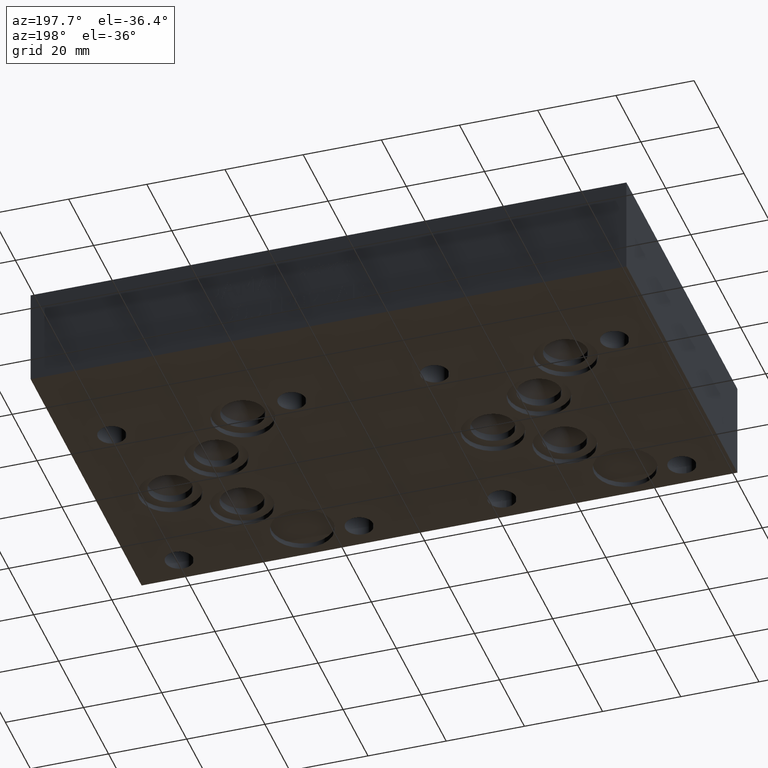
[diagram: clean part render]
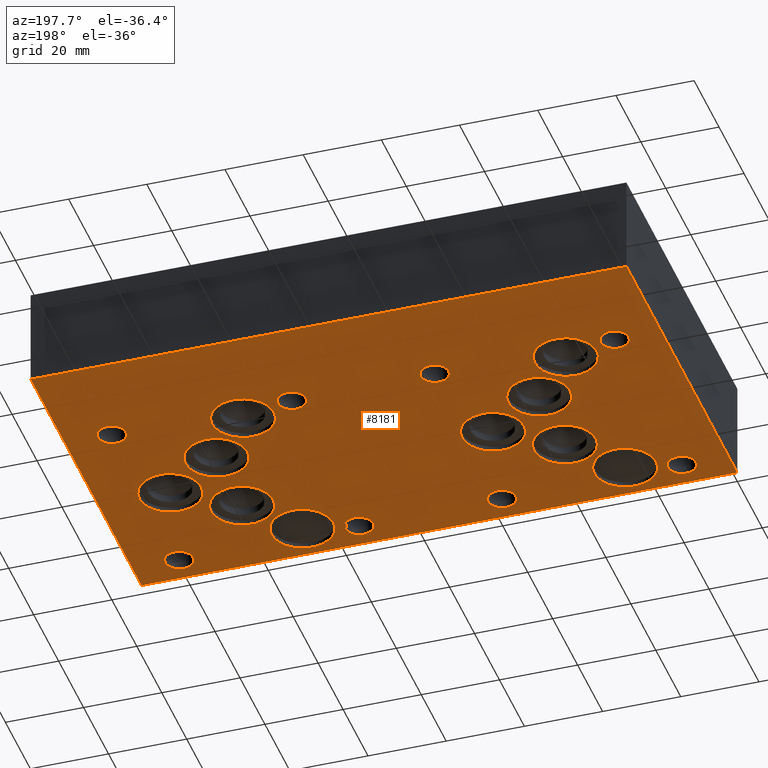
[diagram: same view with one face highlighted and labeled with its STEP entity id]
A machine part, auxiliary view. The second image highlights one B-rep face of the part: STEP entity #8181.
In plain terms, the highlighted planar face has unit normal (0, 0, 1).
Its self-contained STEP definition (entity closure, byte-faithful):
#74=CIRCLE('',#8498,7.9375);
#76=CIRCLE('',#8502,7.9375);
#78=CIRCLE('',#8506,7.9375);
#80=CIRCLE('',#8510,7.9375);
#82=CIRCLE('',#8514,7.9375);
#84=CIRCLE('',#8518,7.9375);
#86=CIRCLE('',#8522,7.9375);
#88=CIRCLE('',#8526,7.9375);
#90=CIRCLE('',#8530,7.9375);
#92=CIRCLE('',#8534,7.9375);
#95=CIRCLE('',#8540,3.5687);
#98=CIRCLE('',#8545,3.5687);
#101=CIRCLE('',#8550,3.5687);
#103=CIRCLE('',#8554,3.5687);
#105=CIRCLE('',#8558,3.5687);
#107=CIRCLE('',#8562,3.5687);
#109=CIRCLE('',#8566,3.5687);
#111=CIRCLE('',#8570,3.5687);
#114=CIRCLE('',#8574,3.5687);
#116=CIRCLE('',#8577,3.5687);
#117=CIRCLE('',#8579,3.5687);
#118=CIRCLE('',#8580,3.5687);
#119=CIRCLE('',#8581,3.5687);
#120=CIRCLE('',#8582,3.5687);
#121=CIRCLE('',#8583,3.5687);
#122=CIRCLE('',#8584,3.5687);
#123=CIRCLE('',#8585,3.5687);
#124=CIRCLE('',#8586,3.5687);
#125=CIRCLE('',#8587,3.5687);
#126=CIRCLE('',#8588,3.5687);
#127=CIRCLE('',#8589,3.5687);
#218=FACE_BOUND('',#1364,.T.);
#219=FACE_BOUND('',#1365,.T.);
#220=FACE_BOUND('',#1366,.T.);
#221=FACE_BOUND('',#1367,.T.);
#222=FACE_BOUND('',#1368,.T.);
#223=FACE_BOUND('',#1369,.T.);
#224=FACE_BOUND('',#1370,.T.);
#225=FACE_BOUND('',#1371,.T.);
#226=FACE_BOUND('',#1372,.T.);
#227=FACE_BOUND('',#1373,.T.);
#228=FACE_BOUND('',#1374,.T.);
#229=FACE_BOUND('',#1375,.T.);
#230=FACE_BOUND('',#1376,.T.);
#231=FACE_BOUND('',#1377,.T.);
#232=FACE_BOUND('',#1378,.T.);
#233=FACE_BOUND('',#1379,.T.);
#234=FACE_BOUND('',#1380,.T.);
#235=FACE_BOUND('',#1381,.T.);
#499=PLANE('',#8578);
#899=FACE_OUTER_BOUND('',#1363,.T.);
#1363=EDGE_LOOP('',(#7161,#7162,#7163,#7164));
#1364=EDGE_LOOP('',(#7165));
#1365=EDGE_LOOP('',(#7166));
#1366=EDGE_LOOP('',(#7167));
#1367=EDGE_LOOP('',(#7168));
#1368=EDGE_LOOP('',(#7169));
#1369=EDGE_LOOP('',(#7170));
#1370=EDGE_LOOP('',(#7171));
#1371=EDGE_LOOP('',(#7172));
#1372=EDGE_LOOP('',(#7173));
#1373=EDGE_LOOP('',(#7174));
#1374=EDGE_LOOP('',(#7175,#7176,#7177));
#1375=EDGE_LOOP('',(#7178,#7179,#7180));
#1376=EDGE_LOOP('',(#7181,#7182,#7183));
#1377=EDGE_LOOP('',(#7184,#7185,#7186));
#1378=EDGE_LOOP('',(#7187,#7188,#7189));
#1379=EDGE_LOOP('',(#7190,#7191));
#1380=EDGE_LOOP('',(#7192,#7193));
#1381=EDGE_LOOP('',(#7194,#7195));
#1774=LINE('',#12635,#2576);
#2199=LINE('',#13965,#3001);
#2200=LINE('',#13966,#3002);
#2201=LINE('',#13967,#3003);
#2576=VECTOR('',#9180,10.);
#3001=VECTOR('',#10115,10.);
#3002=VECTOR('',#10116,10.);
#3003=VECTOR('',#10117,10.);
#3611=VERTEX_POINT('',#12633);
#3612=VERTEX_POINT('',#12634);
#3901=VERTEX_POINT('',#13622);
#3903=VERTEX_POINT('',#13629);
#3905=VERTEX_POINT('',#13636);
#3907=VERTEX_POINT('',#13643);
#3909=VERTEX_POINT('',#13650);
#3911=VERTEX_POINT('',#13657);
#3913=VERTEX_POINT('',#13664);
#3915=VERTEX_POINT('',#13671);
#3917=VERTEX_POINT('',#13678);
#3919=VERTEX_POINT('',#13685);
#3923=VERTEX_POINT('',#13716);
#3924=VERTEX_POINT('',#13718);
#3928=VERTEX_POINT('',#13748);
#3929=VERTEX_POINT('',#13750);
#3933=VERTEX_POINT('',#13783);
#3934=VERTEX_POINT('',#13785);
#3937=VERTEX_POINT('',#13816);
#3938=VERTEX_POINT('',#13818);
#3941=VERTEX_POINT('',#13849);
#3942=VERTEX_POINT('',#13851);
#3945=VERTEX_POINT('',#13882);
#3946=VERTEX_POINT('',#13884);
#3949=VERTEX_POINT('',#13915);
#3950=VERTEX_POINT('',#13917);
#3953=VERTEX_POINT('',#13945);
#3954=VERTEX_POINT('',#13947);
#3958=VERTEX_POINT('',#13963);
#3959=VERTEX_POINT('',#13964);
#3960=VERTEX_POINT('',#13968);
#3961=VERTEX_POINT('',#13971);
#3962=VERTEX_POINT('',#13974);
#3963=VERTEX_POINT('',#13977);
#3964=VERTEX_POINT('',#13980);
#4540=EDGE_CURVE('',#3611,#3612,#1774,.T.);
#4969=EDGE_CURVE('',#3901,#3901,#74,.T.);
#4972=EDGE_CURVE('',#3903,#3903,#76,.T.);
#4975=EDGE_CURVE('',#3905,#3905,#78,.T.);
#4978=EDGE_CURVE('',#3907,#3907,#80,.T.);
#4981=EDGE_CURVE('',#3909,#3909,#82,.T.);
#4984=EDGE_CURVE('',#3911,#3911,#84,.T.);
#4987=EDGE_CURVE('',#3913,#3913,#86,.T.);
#4990=EDGE_CURVE('',#3915,#3915,#88,.T.);
#4993=EDGE_CURVE('',#3917,#3917,#90,.T.);
#4996=EDGE_CURVE('',#3919,#3919,#92,.T.);
#5002=EDGE_CURVE('',#3924,#3923,#95,.T.);
#5008=EDGE_CURVE('',#3929,#3928,#98,.T.);
#5015=EDGE_CURVE('',#3933,#3934,#101,.T.);
#5020=EDGE_CURVE('',#3937,#3938,#103,.T.);
#5025=EDGE_CURVE('',#3941,#3942,#105,.T.);
#5030=EDGE_CURVE('',#3945,#3946,#107,.T.);
#5035=EDGE_CURVE('',#3949,#3950,#109,.T.);
#5039=EDGE_CURVE('',#3954,#3953,#111,.T.);
#5044=EDGE_CURVE('',#3923,#3924,#114,.T.);
#5047=EDGE_CURVE('',#3928,#3929,#116,.T.);
#5048=EDGE_CURVE('',#3958,#3959,#2199,.T.);
#5049=EDGE_CURVE('',#3612,#3958,#2200,.T.);
#5050=EDGE_CURVE('',#3959,#3611,#2201,.T.);
#5051=EDGE_CURVE('',#3950,#3960,#117,.T.);
#5052=EDGE_CURVE('',#3960,#3949,#118,.T.);
#5053=EDGE_CURVE('',#3942,#3961,#119,.T.);
#5054=EDGE_CURVE('',#3961,#3941,#120,.T.);
#5055=EDGE_CURVE('',#3934,#3962,#121,.T.);
#5056=EDGE_CURVE('',#3962,#3933,#122,.T.);
#5057=EDGE_CURVE('',#3946,#3963,#123,.T.);
#5058=EDGE_CURVE('',#3963,#3945,#124,.T.);
#5059=EDGE_CURVE('',#3938,#3964,#125,.T.);
#5060=EDGE_CURVE('',#3964,#3937,#126,.T.);
#5061=EDGE_CURVE('',#3953,#3954,#127,.T.);
#7161=ORIENTED_EDGE('',*,*,#5048,.F.);
#7162=ORIENTED_EDGE('',*,*,#5049,.F.);
#7163=ORIENTED_EDGE('',*,*,#4540,.F.);
#7164=ORIENTED_EDGE('',*,*,#5050,.F.);
#7165=ORIENTED_EDGE('',*,*,#4969,.T.);
#7166=ORIENTED_EDGE('',*,*,#4972,.T.);
#7167=ORIENTED_EDGE('',*,*,#4975,.T.);
#7168=ORIENTED_EDGE('',*,*,#4978,.T.);
#7169=ORIENTED_EDGE('',*,*,#4981,.T.);
#7170=ORIENTED_EDGE('',*,*,#4984,.T.);
#7171=ORIENTED_EDGE('',*,*,#4987,.T.);
#7172=ORIENTED_EDGE('',*,*,#4990,.T.);
#7173=ORIENTED_EDGE('',*,*,#4993,.T.);
#7174=ORIENTED_EDGE('',*,*,#4996,.T.);
#7175=ORIENTED_EDGE('',*,*,#5035,.T.);
#7176=ORIENTED_EDGE('',*,*,#5051,.T.);
#7177=ORIENTED_EDGE('',*,*,#5052,.T.);
#7178=ORIENTED_EDGE('',*,*,#5025,.T.);
#7179=ORIENTED_EDGE('',*,*,#5053,.T.);
#7180=ORIENTED_EDGE('',*,*,#5054,.T.);
#7181=ORIENTED_EDGE('',*,*,#5015,.T.);
#7182=ORIENTED_EDGE('',*,*,#5055,.T.);
#7183=ORIENTED_EDGE('',*,*,#5056,.T.);
#7184=ORIENTED_EDGE('',*,*,#5030,.T.);
#7185=ORIENTED_EDGE('',*,*,#5057,.T.);
#7186=ORIENTED_EDGE('',*,*,#5058,.T.);
#7187=ORIENTED_EDGE('',*,*,#5020,.T.);
#7188=ORIENTED_EDGE('',*,*,#5059,.T.);
#7189=ORIENTED_EDGE('',*,*,#5060,.T.);
#7190=ORIENTED_EDGE('',*,*,#5039,.T.);
#7191=ORIENTED_EDGE('',*,*,#5061,.T.);
#7192=ORIENTED_EDGE('',*,*,#5008,.T.);
#7193=ORIENTED_EDGE('',*,*,#5047,.T.);
#7194=ORIENTED_EDGE('',*,*,#5002,.T.);
#7195=ORIENTED_EDGE('',*,*,#5044,.T.);
#8181=ADVANCED_FACE('',(#899,#218,#219,#220,#221,#222,#223,#224,#225,#226,
#227,#228,#229,#230,#231,#232,#233,#234,#235),#499,.F.);
#8498=AXIS2_PLACEMENT_3D('',#13623,#9925,#9926);
#8502=AXIS2_PLACEMENT_3D('',#13630,#9934,#9935);
#8506=AXIS2_PLACEMENT_3D('',#13637,#9943,#9944);
#8510=AXIS2_PLACEMENT_3D('',#13644,#9952,#9953);
#8514=AXIS2_PLACEMENT_3D('',#13651,#9961,#9962);
#8518=AXIS2_PLACEMENT_3D('',#13658,#9970,#9971);
#8522=AXIS2_PLACEMENT_3D('',#13665,#9979,#9980);
#8526=AXIS2_PLACEMENT_3D('',#13672,#9988,#9989);
#8530=AXIS2_PLACEMENT_3D('',#13679,#9997,#9998);
#8534=AXIS2_PLACEMENT_3D('',#13686,#10006,#10007);
#8540=AXIS2_PLACEMENT_3D('',#13719,#10020,#10021);
#8545=AXIS2_PLACEMENT_3D('',#13751,#10032,#10033);
#8550=AXIS2_PLACEMENT_3D('',#13787,#10045,#10046);
#8554=AXIS2_PLACEMENT_3D('',#13820,#10055,#10056);
#8558=AXIS2_PLACEMENT_3D('',#13853,#10065,#10066);
#8562=AXIS2_PLACEMENT_3D('',#13886,#10075,#10076);
#8566=AXIS2_PLACEMENT_3D('',#13919,#10085,#10086);
#8570=AXIS2_PLACEMENT_3D('',#13948,#10094,#10095);
#8574=AXIS2_PLACEMENT_3D('',#13956,#10104,#10105);
#8577=AXIS2_PLACEMENT_3D('',#13961,#10111,#10112);
#8578=AXIS2_PLACEMENT_3D('',#13962,#10113,#10114);
#8579=AXIS2_PLACEMENT_3D('',#13969,#10118,#10119);
#8580=AXIS2_PLACEMENT_3D('',#13970,#10120,#10121);
#8581=AXIS2_PLACEMENT_3D('',#13972,#10122,#10123);
#8582=AXIS2_PLACEMENT_3D('',#13973,#10124,#10125);
#8583=AXIS2_PLACEMENT_3D('',#13975,#10126,#10127);
#8584=AXIS2_PLACEMENT_3D('',#13976,#10128,#10129);
#8585=AXIS2_PLACEMENT_3D('',#13978,#10130,#10131);
#8586=AXIS2_PLACEMENT_3D('',#13979,#10132,#10133);
#8587=AXIS2_PLACEMENT_3D('',#13981,#10134,#10135);
#8588=AXIS2_PLACEMENT_3D('',#13982,#10136,#10137);
#8589=AXIS2_PLACEMENT_3D('',#13983,#10138,#10139);
#9180=DIRECTION('',(-1.,0.,0.));
#9925=DIRECTION('center_axis',(0.,0.,1.));
#9926=DIRECTION('ref_axis',(1.,0.,0.));
#9934=DIRECTION('center_axis',(0.,0.,1.));
#9935=DIRECTION('ref_axis',(1.,0.,0.));
#9943=DIRECTION('center_axis',(0.,0.,1.));
#9944=DIRECTION('ref_axis',(1.,0.,0.));
#9952=DIRECTION('center_axis',(0.,0.,1.));
#9953=DIRECTION('ref_axis',(1.,0.,0.));
#9961=DIRECTION('center_axis',(0.,0.,1.));
#9962=DIRECTION('ref_axis',(1.,0.,0.));
#9970=DIRECTION('center_axis',(0.,0.,1.));
#9971=DIRECTION('ref_axis',(1.,0.,0.));
#9979=DIRECTION('center_axis',(0.,0.,1.));
#9980=DIRECTION('ref_axis',(1.,0.,0.));
#9988=DIRECTION('center_axis',(0.,0.,1.));
#9989=DIRECTION('ref_axis',(1.,0.,0.));
#9997=DIRECTION('center_axis',(0.,0.,1.));
#9998=DIRECTION('ref_axis',(1.,0.,0.));
#10006=DIRECTION('center_axis',(0.,0.,1.));
#10007=DIRECTION('ref_axis',(1.,0.,0.));
#10020=DIRECTION('center_axis',(0.,0.,1.));
#10021=DIRECTION('ref_axis',(1.,0.,0.));
#10032=DIRECTION('center_axis',(0.,0.,1.));
#10033=DIRECTION('ref_axis',(1.,0.,0.));
#10045=DIRECTION('center_axis',(0.,0.,1.));
#10046=DIRECTION('ref_axis',(1.,0.,0.));
#10055=DIRECTION('center_axis',(0.,0.,1.));
#10056=DIRECTION('ref_axis',(1.,0.,0.));
#10065=DIRECTION('center_axis',(0.,0.,1.));
#10066=DIRECTION('ref_axis',(1.,0.,0.));
#10075=DIRECTION('center_axis',(0.,0.,1.));
#10076=DIRECTION('ref_axis',(1.,0.,0.));
#10085=DIRECTION('center_axis',(0.,0.,1.));
#10086=DIRECTION('ref_axis',(1.,0.,0.));
#10094=DIRECTION('center_axis',(0.,0.,1.));
#10095=DIRECTION('ref_axis',(1.,0.,0.));
#10104=DIRECTION('center_axis',(0.,0.,1.));
#10105=DIRECTION('ref_axis',(1.,0.,0.));
#10111=DIRECTION('center_axis',(0.,0.,1.));
#10112=DIRECTION('ref_axis',(1.,0.,0.));
#10113=DIRECTION('center_axis',(0.,0.,1.));
#10114=DIRECTION('ref_axis',(1.,0.,0.));
#10115=DIRECTION('',(1.,0.,0.));
#10116=DIRECTION('',(0.,-1.,0.));
#10117=DIRECTION('',(0.,1.,0.));
#10118=DIRECTION('center_axis',(0.,0.,1.));
#10119=DIRECTION('ref_axis',(1.,0.,0.));
#10120=DIRECTION('center_axis',(0.,0.,1.));
#10121=DIRECTION('ref_axis',(1.,0.,0.));
#10122=DIRECTION('center_axis',(0.,0.,1.));
#10123=DIRECTION('ref_axis',(1.,0.,0.));
#10124=DIRECTION('center_axis',(0.,0.,1.));
#10125=DIRECTION('ref_axis',(1.,0.,0.));
#10126=DIRECTION('center_axis',(0.,0.,1.));
#10127=DIRECTION('ref_axis',(1.,0.,0.));
#10128=DIRECTION('center_axis',(0.,0.,1.));
#10129=DIRECTION('ref_axis',(1.,0.,0.));
#10130=DIRECTION('center_axis',(0.,0.,1.));
#10131=DIRECTION('ref_axis',(1.,0.,0.));
#10132=DIRECTION('center_axis',(0.,0.,1.));
#10133=DIRECTION('ref_axis',(1.,0.,0.));
#10134=DIRECTION('center_axis',(0.,0.,1.));
#10135=DIRECTION('ref_axis',(1.,0.,0.));
#10136=DIRECTION('center_axis',(0.,0.,1.));
#10137=DIRECTION('ref_axis',(1.,0.,0.));
#10138=DIRECTION('center_axis',(0.,0.,1.));
#10139=DIRECTION('ref_axis',(1.,0.,0.));
#12633=CARTESIAN_POINT('',(152.4,88.9,0.));
#12634=CARTESIAN_POINT('',(0.,88.9,0.));
#12635=CARTESIAN_POINT('',(152.4,88.9,0.));
#13622=CARTESIAN_POINT('',(111.14405,23.80615,0.));
#13623=CARTESIAN_POINT('Origin',(119.08155,23.80615,0.));
#13629=CARTESIAN_POINT('',(100.01885,57.94375,0.));
#13630=CARTESIAN_POINT('Origin',(107.95635,57.94375,0.));
#13636=CARTESIAN_POINT('',(17.4625,10.3124,0.));
#13637=CARTESIAN_POINT('Origin',(25.4,10.3124,0.));
#13643=CARTESIAN_POINT('',(28.5623,44.4246,0.));
#13644=CARTESIAN_POINT('Origin',(36.4998,44.4246,0.));
#13650=CARTESIAN_POINT('',(43.6753,34.1122,0.));
#13651=CARTESIAN_POINT('Origin',(51.6128,34.1122,0.));
#13657=CARTESIAN_POINT('',(17.4625,57.9374,0.));
#13658=CARTESIAN_POINT('Origin',(25.4,57.9374,0.));
#13664=CARTESIAN_POINT('',(28.5877,23.7998,0.));
#13665=CARTESIAN_POINT('Origin',(36.5252,23.7998,0.));
#13671=CARTESIAN_POINT('',(126.23165,34.11855,0.));
#13672=CARTESIAN_POINT('Origin',(134.16915,34.11855,0.));
#13678=CARTESIAN_POINT('',(111.11865,44.43095,0.));
#13679=CARTESIAN_POINT('Origin',(119.05615,44.43095,0.));
#13685=CARTESIAN_POINT('',(100.01885,10.31875,0.));
#13686=CARTESIAN_POINT('Origin',(107.95635,10.31875,0.));
#13716=CARTESIAN_POINT('',(136.925050706183,7.1389875,0.));
#13718=CARTESIAN_POINT('',(144.06244646909,7.14216249497379,0.));
#13719=CARTESIAN_POINT('Origin',(140.49375,7.14374999999999,0.));
#13748=CARTESIAN_POINT('',(90.8748507061834,61.1139875,0.));
#13750=CARTESIAN_POINT('',(98.0122464690902,61.1171624949738,0.));
#13751=CARTESIAN_POINT('Origin',(94.44355,61.11875,0.));
#13783=CARTESIAN_POINT('',(57.9310499999988,3.56870564947066,0.));
#13785=CARTESIAN_POINT('',(57.9310500000012,10.7060943505293,0.));
#13787=CARTESIAN_POINT('Origin',(57.9374,7.1374,0.));
#13816=CARTESIAN_POINT('',(9.35740601954415,58.5953060195437,0.));
#13818=CARTESIAN_POINT('',(14.4042939804559,63.6421939804563,0.));
#13820=CARTESIAN_POINT('Origin',(11.8872,61.1124,0.));
#13849=CARTESIAN_POINT('',(60.454493980457,58.5953060195448,0.));
#13851=CARTESIAN_POINT('',(55.407606019543,63.6421939804552,0.));
#13853=CARTESIAN_POINT('Origin',(57.9374,61.1251,0.));
#13882=CARTESIAN_POINT('',(11.8935499999988,3.56870564947066,0.));
#13884=CARTESIAN_POINT('',(11.8935500000012,10.7060943505293,0.));
#13886=CARTESIAN_POINT('Origin',(11.8999,7.1374,0.));
#13915=CARTESIAN_POINT('',(144.062414690662,61.128275,0.));
#13917=CARTESIAN_POINT('',(136.925085309338,61.128275,0.));
#13919=CARTESIAN_POINT('Origin',(140.49375,61.14415,0.));
#13945=CARTESIAN_POINT('',(90.8748507061834,7.1389875,0.));
#13947=CARTESIAN_POINT('',(98.0122464690902,7.14216249497379,0.));
#13948=CARTESIAN_POINT('Origin',(94.44355,7.14374999999999,0.));
#13956=CARTESIAN_POINT('Origin',(140.49375,7.1374,0.));
#13961=CARTESIAN_POINT('Origin',(94.44355,61.1124,0.));
#13962=CARTESIAN_POINT('Origin',(76.2,44.45,0.));
#13963=CARTESIAN_POINT('',(0.,0.,0.));
#13964=CARTESIAN_POINT('',(152.4,0.,0.));
#13965=CARTESIAN_POINT('',(0.,0.,0.));
#13966=CARTESIAN_POINT('',(0.,88.9,0.));
#13967=CARTESIAN_POINT('',(152.4,0.,0.));
#13968=CARTESIAN_POINT('',(136.92505,61.1124,0.));
#13969=CARTESIAN_POINT('Origin',(140.49375,61.1124,0.));
#13970=CARTESIAN_POINT('Origin',(140.49375,61.1124,0.));
#13971=CARTESIAN_POINT('',(54.356,61.1124,0.));
#13972=CARTESIAN_POINT('Origin',(57.9247,61.1124,0.));
#13973=CARTESIAN_POINT('Origin',(57.9247,61.1124,0.));
#13974=CARTESIAN_POINT('',(54.356,7.1374,0.));
#13975=CARTESIAN_POINT('Origin',(57.9247,7.1374,0.));
#13976=CARTESIAN_POINT('Origin',(57.9247,7.1374,0.));
#13977=CARTESIAN_POINT('',(8.3185,7.1374,0.));
#13978=CARTESIAN_POINT('Origin',(11.8872,7.1374,0.));
#13979=CARTESIAN_POINT('Origin',(11.8872,7.1374,0.));
#13980=CARTESIAN_POINT('',(8.3058,61.1251,0.));
#13981=CARTESIAN_POINT('Origin',(11.8745,61.1251,0.));
#13982=CARTESIAN_POINT('Origin',(11.8745,61.1251,0.));
#13983=CARTESIAN_POINT('Origin',(94.44355,7.1374,0.));